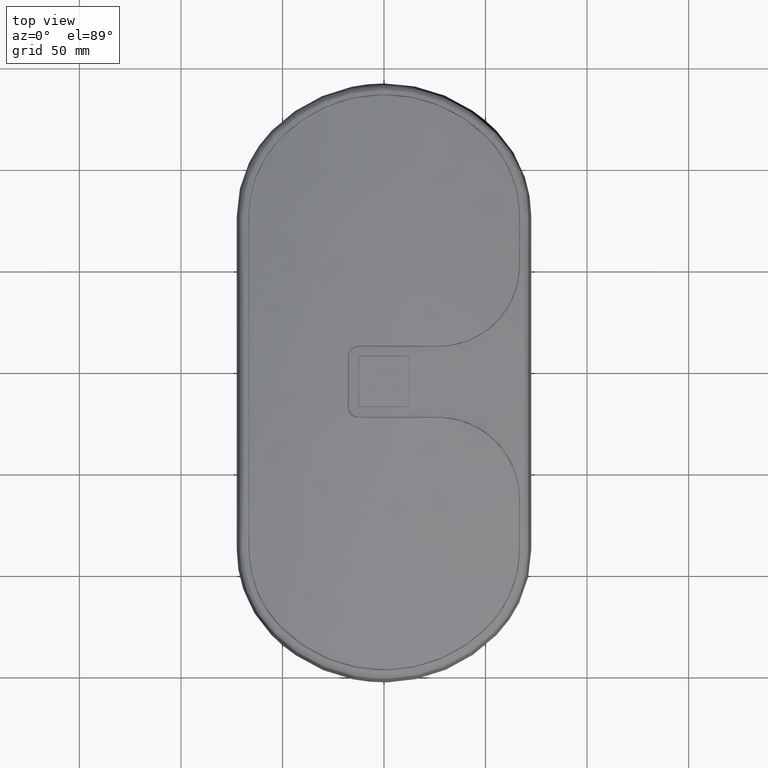
[diagram: clean part render]
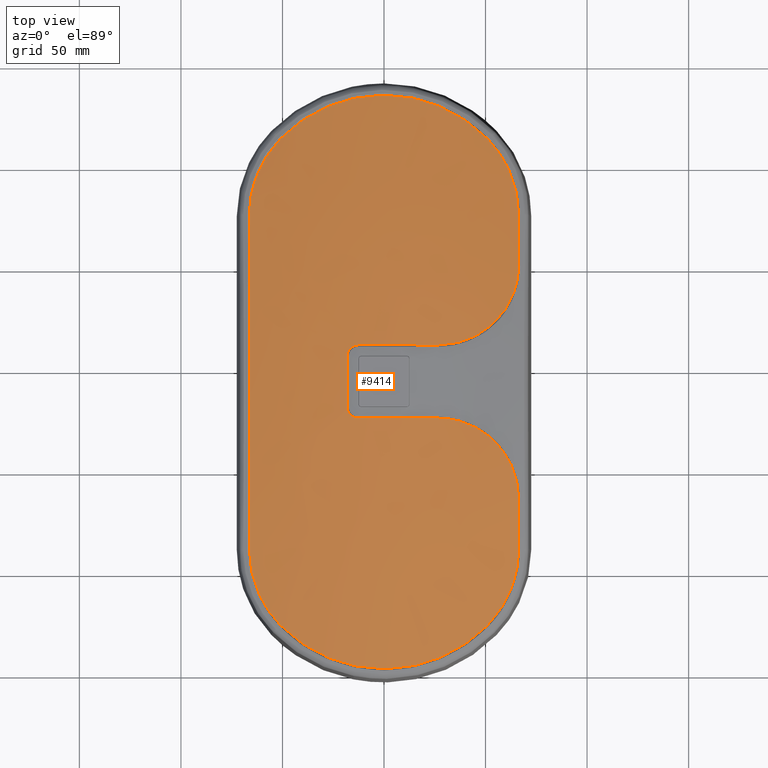
[diagram: same view with one face highlighted and labeled with its STEP entity id]
A machine part, top view. The second image highlights one B-rep face of the part: STEP entity #9414.
In plain terms, the highlighted face is a freeform B-spline surface patch.
Its self-contained STEP definition (entity closure, byte-faithful):
#18 = CARTESIAN_POINT ( 'NONE',  ( -17.46326758929851408, 28.15362004242848570, 219.8598956112555527 ) ) ;
#30 = CARTESIAN_POINT ( 'NONE',  ( 64.15844266693783027, 88.07705453095773862, 209.3021296673372831 ) ) ;
#35 = CARTESIAN_POINT ( 'NONE',  ( 64.97219269329066549, 137.7215438996090882, 203.6671617160232870 ) ) ;
#69 = CARTESIAN_POINT ( 'NONE',  ( 11.57024656942300034, 43.42808254921262545, 220.5169199636127075 ) ) ;
#84 = CARTESIAN_POINT ( 'NONE',  ( 29.81181968206535871, 178.1927645458040388, 205.0468116223597121 ) ) ;
#99 = CARTESIAN_POINT ( 'NONE',  ( -16.04378983216178156, 26.53738068748821277, 219.9332974502598006 ) ) ;
#108 = CARTESIAN_POINT ( 'NONE',  ( 61.25390180664494721, 5.198663363938697657, 210.6163553388888658 ) ) ;
#118 = CARTESIAN_POINT ( 'NONE',  ( -18.71798582327893001, -95.32900178140060632, 205.5608349653536493 ) ) ;
#119 = CARTESIAN_POINT ( 'NONE',  ( -63.56209561027105792, -55.87008167289961591, 203.3766647396037115 ) ) ;
#169 = CARTESIAN_POINT ( 'NONE',  ( 36.09792871868237540, 174.8775816281145410, 204.6594053288953887 ) ) ;
#174 = CARTESIAN_POINT ( 'NONE',  ( -66.29735208111164013, 77.81083968938067130, 209.2790757671028246 ) ) ;
#198 = CARTESIAN_POINT ( 'NONE',  ( -15.24627076480030219, -96.17949683370339642, 205.6754381838825907 ) ) ;
#264 = CARTESIAN_POINT ( 'NONE',  ( 66.29926321442961523, -14.12049172457155422, 207.5776157116058585 ) ) ;
#274 = CARTESIAN_POINT ( 'NONE',  ( -47.61024757625367698, -79.65880390832415969, 203.8322812746360171 ) ) ;
#290 = CARTESIAN_POINT ( 'NONE',  ( 63.55986690828642338, -55.89120322041640065, 203.3720218001600699 ) ) ;
#351 = EDGE_CURVE ( 'Defeatured_0_0+Defeatured_0_21+Defeatured_0_23+Defeatured_0_19', #14463, #4191, #13700, .T. ) ;
#405 = CARTESIAN_POINT ( 'NONE',  ( -18.01371397899924887, 57.36735070667229763, 219.8428921939822374 ) ) ;
#418 = CARTESIAN_POINT ( 'NONE',  ( 66.29914169129392576, -11.47378258080629543, 207.8150648695524865 ) ) ;
#451 = CARTESIAN_POINT ( 'NONE',  ( 55.62091833696599963, -71.15900204771212145, 203.2742824260909913 ) ) ;
#522 = CARTESIAN_POINT ( 'NONE',  ( 66.30078041461482030, -40.62257739408176604, 204.6503384869841966 ) ) ;
#634 = CARTESIAN_POINT ( 'NONE',  ( 0.01028707379601065224, -99.88193803666831627, 205.4584173015715294 ) ) ;
#640 = CARTESIAN_POINT ( 'NONE',  ( -17.45294168043287897, 58.69050579141951118, 219.8608939670576206 ) ) ;
#708 = CARTESIAN_POINT ( 'NONE',  ( 22.68857985263749910, -53.18935853610327058, 214.3774798297451412 ) ) ;
#784 = CARTESIAN_POINT ( 'NONE',  ( 17.38118190714810396, -4.884991627148490778, 220.0378661604646595 ) ) ;
#828 = B_SPLINE_CURVE_WITH_KNOTS ( 'NONE', 3,
 ( #14904, #13577, #451, #6402, #2757, #13888, #2836, #8719, #290, #2687, #7520, #4086, #11261, #12391, #11184, #5136, #522, #7592 ),
 .UNSPECIFIED., .F., .F.,
 ( 4, 2, 2, 2, 2, 2, 2, 2, 4 ),
 ( 0.0000000000000000000, 0.01036578884546289839, 0.01554868326819436493, 0.02073157769092585229, 0.02591447211365734485, 0.02850591932502309633, 0.03109736653638884782, 0.03628026095912036814, 0.04146315538185187805 ),
 .UNSPECIFIED. ) ;
#872 = CARTESIAN_POINT ( 'NONE',  ( -53.74396954402440230, -99.88301236950015038, 198.3367334028273206 ) ) ;
#886 = ORIENTED_EDGE ( 'NONE', *, *, #5569, .T. ) ;
#915 = CARTESIAN_POINT ( 'NONE',  ( 56.40410635426117381, 74.79093016765249047, 212.3915480500613455 ) ) ;
#999 = CARTESIAN_POINT ( 'NONE',  ( -58.01749593589836707, -67.51208502426862879, 203.1975516321419093 ) ) ;
#1012 = EDGE_LOOP ( 'NONE', ( #7395, #1504, #2253, #4524, #13429, #5337, #3189, #6833, #5205, #10497, #11162, #886, #1564, #8969, #9063, #4768 ) ) ;
#1027 = CARTESIAN_POINT ( 'NONE',  ( 43.15938739768790100, 186.7399436771935655, 200.7998753498113444 ) ) ;
#1048 = CARTESIAN_POINT ( 'NONE',  ( -9.493695185145588411, 184.0508075909120578, 205.8135998372313225 ) ) ;
#1102 = CARTESIAN_POINT ( 'NONE',  ( 0.03359708015213029586, 91.74069324380360513, 220.7527973172209954 ) ) ;
#1144 = CARTESIAN_POINT ( 'NONE',  ( 51.02634899205816055, 163.1931504267746504, 203.5803227976296341 ) ) ;
#1181 = CARTESIAN_POINT ( 'NONE',  ( -18.19226166652730114, 39.25130172041993148, 220.0110326760408839 ) ) ;
#1184 = CARTESIAN_POINT ( 'NONE',  ( 67.39078960470271795, 140.0445167232655592, 204.2961116910592239 ) ) ;
#1196 = CARTESIAN_POINT ( 'NONE',  ( 66.30066395131453305, 125.7515932687080777, 204.8727031279244386 ) ) ;
#1201 = CARTESIAN_POINT ( 'NONE',  ( -8.304558164214386196, 184.2009249590114450, 205.8341065353321255 ) ) ;
#1225 = CARTESIAN_POINT ( 'NONE',  ( 11.84928130558356685, -96.83748220726211287, 205.7663841930887259 ) ) ;
#1226 = CARTESIAN_POINT ( 'NONE',  ( -62.99048689760354591, -57.49298103747052124, 203.3085318682473428 ) ) ;
#1227 = VERTEX_POINT ( 'NONE', #1196 ) ;
#1258 = CARTESIAN_POINT ( 'NONE',  ( 52.29569424687390011, 43.42808254910060839, 214.2330272378520704 ) ) ;
#1273 = CARTESIAN_POINT ( 'NONE',  ( 19.85993811556663502, 181.8648207867931887, 205.5188511044601967 ) ) ;
#1278 = CARTESIAN_POINT ( 'NONE',  ( -66.29711513835847825, 15.90408086289308720, 209.7201665693417283 ) ) ;
#1287 = CARTESIAN_POINT ( 'NONE',  ( 20.17641465411423596, 25.40854521753735895, 219.6470433995852432 ) ) ;
#1288 = CARTESIAN_POINT ( 'NONE',  ( -18.05124874874577756, 29.66265009182627921, 219.8432093015477164 ) ) ;
#1296 = CARTESIAN_POINT ( 'NONE',  ( 64.73799668817852648, -3.111942774511600618, 208.9809969425745351 ) ) ;
#1304 = CARTESIAN_POINT ( 'NONE',  ( 25.50633283727766099, -93.14825944994720430, 205.2736910453387225 ) ) ;
#1335 = CARTESIAN_POINT ( 'NONE',  ( -11.31531759796239989, 140.0441622567905995, 215.5382262754915246 ) ) ;
#1351 = B_SPLINE_CURVE_WITH_KNOTS ( 'NONE', 3,
 ( #4775, #10987, #3813, #12114, #13296, #4928, #11949, #169, #4845, #6199, #84, #7314, #6123, #1273, #9809, #9649, #10747, #14638, #9564, #8589, #14711, #14487, #9725, #1201, #1048, #3666, #13453, #3586, #2557, #2330, #2249, #8517, #13382, #2407, #7236, #5882, #2482, #15597, #6045, #7387, #14415, #12186 ),
 .UNSPECIFIED., .F., .F.,
 ( 4, 2, 2, 2, 2, 2, 2, 2, 2, 2, 2, 2, 2, 2, 2, 2, 2, 2, 2, 2, 4 ),
 ( 0.0000000000000000000, 0.007120365257570303655, 0.01424073051514060731, 0.01780091314392573745, 0.02136109577271086413, 0.02848146103028112788, 0.03560182628785137776, 0.03916200891663649403, 0.04272219154542160335, 0.04984255680299183588, 0.05696292206056204760, 0.06408328731813227319, 0.06764346994691738946, 0.07120365257570250572, 0.07832401783327273825, 0.08544438309084295691, 0.08900456571962808705, 0.09256474834841320332, 0.09968511360598340809, 0.1068054788635536406, 0.1139258441211238732 ),
 .UNSPECIFIED. ) ;
#1384 = CARTESIAN_POINT ( 'NONE',  ( 2.382151774481425566, -97.82300794339272443, 205.8995156396993025 ) ) ;
#1451 = CARTESIAN_POINT ( 'NONE',  ( -17.84066600234974587, 28.96997787854018824, 219.8464591599083633 ) ) ;
#1471 = CARTESIAN_POINT ( 'NONE',  ( 13.01789390031080984, -96.63013433922917272, 205.7381304160931279 ) ) ;
#1504 = ORIENTED_EDGE ( 'NONE', *, *, #5778, .T. ) ;
#1537 = CARTESIAN_POINT ( 'NONE',  ( 60.93258288589630922, 5.760678579217171524, 210.7463889888285280 ) ) ;
#1564 = ORIENTED_EDGE ( 'NONE', *, *, #8511, .T. ) ;
#1597 = CARTESIAN_POINT ( 'NONE',  ( -12.67940506602159800, 61.43523734159919769, 220.1316711843255689 ) ) ;
#1601 = CARTESIAN_POINT ( 'NONE',  ( 0.4613672942006233901, 61.43524956787831570, 220.6146703678169558 ) ) ;
#1607 = EDGE_CURVE ( 'Defeatured_0_0+Defeatured_0_18+Defeatured_0_19+Defeatured_0_20', #12733, #2972, #5792, .T. ) ;
#1649 = CARTESIAN_POINT ( 'NONE',  ( -66.29974077319435821, 125.7516070377188981, 204.8766309863386255 ) ) ;
#1665 = B_SPLINE_CURVE_WITH_KNOTS ( 'NONE', 3,
 ( #7325, #1287, #4786, #9659, #3596, #8449 ),
 .UNSPECIFIED., .F., .F.,
 ( 4, 2, 4 ),
 ( 0.0000000000000000000, 0.01971905991781117140, 0.03943811983562234280 ),
 .UNSPECIFIED. ) ;
#1676 = CARTESIAN_POINT ( 'NONE',  ( -14.10173970799716692, 61.25192534413017142, 220.0469054583722652 ) ) ;
#1678 = CARTESIAN_POINT ( 'NONE',  ( -62.99315171265381963, 144.3477838100291422, 203.3078951974263759 ) ) ;
#1825 = CARTESIAN_POINT ( 'NONE',  ( 21.71555945271209964, -99.88395323878215493, 204.3601890406116297 ) ) ;
#1911 = CARTESIAN_POINT ( 'NONE',  ( 56.53236971252650278, -53.18888139112436875, 207.7847224006706313 ) ) ;
#1987 = CARTESIAN_POINT ( 'NONE',  ( 39.78854340633149889, -53.18938162964447969, 211.7924356320145307 ) ) ;
#2008 = CARTESIAN_POINT ( 'NONE',  ( 50.77887547040264593, 17.26885805535854956, 214.0911078716854377 ) ) ;
#2030 = VERTEX_POINT ( 'NONE', #3380 ) ;
#2061 = CARTESIAN_POINT ( 'NONE',  ( -18.19227632628737013, 30.91259747813296244, 219.8556069557320711 ) ) ;
#2062 = B_SPLINE_CURVE_WITH_KNOTS ( 'NONE', 3,
 ( #2061, #1181, #2308, #6901 ),
 .UNSPECIFIED., .F., .F.,
 ( 4, 4 ),
 ( 0.0000000000000000000, 0.02501937637798910125 ),
 .UNSPECIFIED. ) ;
#2067 = CARTESIAN_POINT ( 'NONE',  ( 64.05410634329560082, -99.88252881352543966, 194.7899857272403210 ) ) ;
#2109 = CARTESIAN_POINT ( 'NONE',  ( 50.84201055089587129, 69.52393223012835222, 214.0909091208546329 ) ) ;
#2120 = EDGE_CURVE ( 'Defeatured_0_0+Defeatured_0_27+Defeatured_0_29+Defeatured_0_25', #3900, #6395, #3882, .T. ) ;
#2121 = EDGE_CURVE ( 'Defeatured_0_0+Defeatured_0_30+Defeatured_0_28+Defeatured_0_32', #1227, #5184, #10154, .T. ) ;
#2147 = CARTESIAN_POINT ( 'NONE',  ( -21.75631835865880248, -99.88374822816547294, 204.5857826311448378 ) ) ;
#2230 = CARTESIAN_POINT ( 'NONE',  ( -23.29189784629880222, 91.74133551779156903, 219.8041940461089894 ) ) ;
#2249 = CARTESIAN_POINT ( 'NONE',  ( -25.50556351373296593, 180.0042889642834893, 205.2739518480168215 ) ) ;
#2253 = ORIENTED_EDGE ( 'NONE', *, *, #9891, .T. ) ;
#2308 = CARTESIAN_POINT ( 'NONE',  ( -18.19226165914599846, 47.59244955784135556, 220.0111103507750556 ) ) ;
#2313 = CARTESIAN_POINT ( 'NONE',  ( -56.63235040430429734, 140.0448678620955718, 207.9963296777527262 ) ) ;
#2330 = CARTESIAN_POINT ( 'NONE',  ( -23.28732232409874925, 180.8093427737022978, 205.3786098916351648 ) ) ;
#2360 = CARTESIAN_POINT ( 'NONE',  ( -64.55214015797484706, -52.55963463159628191, 203.5571476808212310 ) ) ;
#2390 = CARTESIAN_POINT ( 'NONE',  ( 62.01150208639170103, 140.0447984136645800, 206.1450203078439358 ) ) ;
#2407 = CARTESIAN_POINT ( 'NONE',  ( -32.01215348084034673, 177.1009665488766416, 204.9168290982991891 ) ) ;
#2437 = CARTESIAN_POINT ( 'NONE',  ( -2.338942456069497577, -97.82442186551503482, 205.8992392839418528 ) ) ;
#2468 = CARTESIAN_POINT ( 'NONE',  ( 34.10279568204919798, 140.0456475805435730, 212.7337774859329897 ) ) ;
#2478 = CARTESIAN_POINT ( 'NONE',  ( 66.29926264771768274, 100.9643171417655765, 207.5787253775239662 ) ) ;
#2482 = CARTESIAN_POINT ( 'NONE',  ( -38.21845789802463855, 173.6158244242123203, 204.5181637053892416 ) ) ;
#2500 = CARTESIAN_POINT ( 'NONE',  ( 66.30066395985839733, -38.89555003099011543, 204.8726835114582627 ) ) ;
#2512 = CARTESIAN_POINT ( 'NONE',  ( 66.30089700980123268, 129.2078635337406638, 204.4277286781224916 ) ) ;
#2541 = CARTESIAN_POINT ( 'NONE',  ( 64.05410844906940326, 186.7386949334735959, 194.7899917265364422 ) ) ;
#2557 = CARTESIAN_POINT ( 'NONE',  ( -18.78316051136568987, 182.1972186286740509, 205.5620268359589318 ) ) ;
#2582 = CARTESIAN_POINT ( 'NONE',  ( 64.93016733032982302, 90.57796210613533106, 208.8757760591207102 ) ) ;
#2587 = CARTESIAN_POINT ( 'NONE',  ( 55.63365327438910413, 158.0081563915637446, 203.2720322330799547 ) ) ;
#2646 = CARTESIAN_POINT ( 'NONE',  ( -16.82980678760007720, 27.27216704604629527, 219.8904723100143030 ) ) ;
#2657 = B_SPLINE_CURVE_WITH_KNOTS ( 'NONE', 3,
 ( #14420, #3518, #14718, #174, #12191, #13458, #5011, #9884, #1278, #11142, #6282, #10991 ),
 .UNSPECIFIED., .F., .F.,
 ( 4, 2, 2, 2, 2, 4 ),
 ( 0.0000000000000000000, 0.04126498278244706414, 0.06189747417367061355, 0.08252996556489416990, 0.1237949483473412965, 0.1650599311297884508 ),
 .UNSPECIFIED. ) ;
#2667 = CARTESIAN_POINT ( 'NONE',  ( -42.08260772551673767, -84.12862875278430863, 204.2441654614357560 ) ) ;
#2687 = CARTESIAN_POINT ( 'NONE',  ( 64.30160836856929052, -53.42064937715341699, 203.5055514528772562 ) ) ;
#2757 = CARTESIAN_POINT ( 'NONE',  ( 59.35595044688984245, -65.30772125663861516, 203.1726102138742931 ) ) ;
#2803 = CARTESIAN_POINT ( 'NONE',  ( -12.67940506602159800, 61.43523734159919769, 220.1316711843255689 ) ) ;
#2836 = CARTESIAN_POINT ( 'NONE',  ( 61.68939390781986276, -60.68670697455358010, 203.2123335869692085 ) ) ;
#2873 = CARTESIAN_POINT ( 'NONE',  ( -17.05592685122953256, 59.29757466255819054, 219.8792183337918686 ) ) ;
#2887 = CARTESIAN_POINT ( 'NONE',  ( 65.23655238777008947, -5.001752187122145976, 208.6799428545879493 ) ) ;
#2957 = CARTESIAN_POINT ( 'NONE',  ( -16.82742318441962581, 59.57429897282872844, 219.8908952291982359 ) ) ;
#2972 = VERTEX_POINT ( 'NONE', #14270 ) ;
#3024 = CARTESIAN_POINT ( 'NONE',  ( -22.76822695939840102, -53.18921009600017413, 214.6161221077747143 ) ) ;
#3028 = CARTESIAN_POINT ( 'NONE',  ( -17.90753775949587379, 57.71364933359721761, 219.8446167025894340 ) ) ;
#3085 = EDGE_CURVE ( 'Defeatured_0_0+Defeatured_0_28+Defeatured_0_26+Defeatured_0_30', #13627, #1227, #15600, .T. ) ;
#3100 = CARTESIAN_POINT ( 'NONE',  ( 48.42665332016390067, -99.88353088192950224, 199.4605205790649052 ) ) ;
#3105 = CARTESIAN_POINT ( 'NONE',  ( -15.11933513707986165, 60.87992927636061324, 219.9868386407988226 ) ) ;
#3144 = CARTESIAN_POINT ( 'NONE',  ( 59.18645785549189497, 78.35118990750976309, 211.4175615377736790 ) ) ;
#3183 = CARTESIAN_POINT ( 'NONE',  ( 29.08924870668599993, -4.885357693189887662, 218.8363007274384699 ) ) ;
#3189 = ORIENTED_EDGE ( 'NONE', *, *, #5194, .T. ) ;
#3222 = CARTESIAN_POINT ( 'NONE',  ( 47.60783277016697213, 67.38681310473337760, 214.9316604097097070 ) ) ;
#3257 = CARTESIAN_POINT ( 'NONE',  ( 34.94281048177990101, -4.885307175977487759, 217.8682084635415492 ) ) ;
#3334 = CARTESIAN_POINT ( 'NONE',  ( -46.56266057986120188, -4.885491178105105803, 215.9365516723070471 ) ) ;
#3380 = CARTESIAN_POINT ( 'NONE',  ( -18.19227630406737006, 55.93115760660422353, 219.8558387167926753 ) ) ;
#3408 = CARTESIAN_POINT ( 'NONE',  ( 0.03359707849392819939, 43.42808254927859934, 220.7527962291952406 ) ) ;
#3494 = CARTESIAN_POINT ( 'NONE',  ( 27.11721998089850416, 186.7404512983655991, 203.6968507251510232 ) ) ;
#3518 = CARTESIAN_POINT ( 'NONE',  ( -66.29877680500409554, 112.1003766303452807, 206.6347615007110505 ) ) ;
#3542 = CARTESIAN_POINT ( 'NONE',  ( -66.29998484598307584, -42.35181488109893166, 204.4314828461228899 ) ) ;
#3553 = CARTESIAN_POINT ( 'NONE',  ( -51.02529239238161551, 163.1932895469398090, 203.5788030923400527 ) ) ;
#3568 = CARTESIAN_POINT ( 'NONE',  ( -34.09107335019100304, 140.0456946454085880, 212.7356459425648154 ) ) ;
#3586 = CARTESIAN_POINT ( 'NONE',  ( -16.49723847823954159, 182.7800342088395098, 205.6407993928008580 ) ) ;
#3596 = CARTESIAN_POINT ( 'NONE',  ( -6.111114183927846888, 25.40852281759333309, 220.5237109245071281 ) ) ;
#3611 = CARTESIAN_POINT ( 'NONE',  ( -39.13612821745842751, -86.13323463949653558, 204.4529959961602117 ) ) ;
#3646 = CARTESIAN_POINT ( 'NONE',  ( 17.38118206115920117, 91.74115672541357469, 220.0378683283864234 ) ) ;
#3666 = CARTESIAN_POINT ( 'NONE',  ( -11.84844849564423974, 183.6935247823205657, 205.7648887781856217 ) ) ;
#3682 = EDGE_CURVE ( 'Defeatured_0_0+Defeatured_0_29+Defeatured_0_31+Defeatured_0_27', #14742, #3900, #6880, .T. ) ;
#3698 = CARTESIAN_POINT ( 'NONE',  ( 42.11339049913924271, -84.10595667799074704, 204.2428522835199942 ) ) ;
#3729 = CARTESIAN_POINT ( 'NONE',  ( 45.42108519305980252, 140.0453935084415775, 210.6091622646914345 ) ) ;
#3770 = CARTESIAN_POINT ( 'NONE',  ( -38.13563782844619254, -86.77837093700532023, 204.5223891477989469 ) ) ;
#3813 = CARTESIAN_POINT ( 'NONE',  ( 47.61113003415609768, 166.5148349572238544, 203.8340294132306667 ) ) ;
#3823 = CARTESIAN_POINT ( 'NONE',  ( -60.96879536218119000, 149.0898312910169068, 203.1878540844884071 ) ) ;
#3844 = CARTESIAN_POINT ( 'NONE',  ( 32.01291652336572469, -90.24494948529734017, 204.9161692855201977 ) ) ;
#3882 = B_SPLINE_CURVE_WITH_KNOTS ( 'NONE', 3,
 ( #14280, #15633, #274, #7268, #2667, #3611, #3770, #13329, #13556, #8700, #12296, #10936, #7500, #8622, #118, #11239, #198, #9680, #13411, #8466, #2437, #1384, #12145, #11017, #12371, #1225, #1471, #14516, #6309, #13631, #1304, #11095, #6232, #3844, #11166, #5118, #9836, #3698, #14592, #14667, #6147, #12215 ),
 .UNSPECIFIED., .F., .F.,
 ( 4, 2, 2, 2, 2, 2, 2, 2, 2, 2, 2, 2, 2, 2, 2, 2, 2, 2, 2, 2, 4 ),
 ( 0.0000000000000000000, 0.007120374966992482242, 0.01424074993398496448, 0.01780093741748120170, 0.02136112490097744065, 0.02848149986796988040, 0.03560187483496230626, 0.03916206231845852787, 0.04272224980195474253, 0.04984262476894717186, 0.05696299973593960814, 0.06408337470293204441, 0.06764356218642825214, 0.07120374966992445986, 0.07832412463691690307, 0.08544449960390933241, 0.08900468708740555401, 0.09256487457090178950, 0.09968524953789424659, 0.1068056245048867037, 0.1139259994718791608 ),
 .UNSPECIFIED. ) ;
#3900 = VERTEX_POINT ( 'NONE', #11241 ) ;
#3901 = CARTESIAN_POINT ( 'NONE',  ( -64.94971613581843428, 137.7456290691072525, 203.6719682783930523 ) ) ;
#3911 = CARTESIAN_POINT ( 'NONE',  ( 64.91417350753449966, -3.737463351555507352, 208.8785185707983487 ) ) ;
#3922 = CARTESIAN_POINT ( 'NONE',  ( 53.45861105987334128, 160.7041250765115592, 203.4026057254817772 ) ) ;
#3976 = CARTESIAN_POINT ( 'NONE',  ( -66.29998483730564374, 129.2079196020438587, 204.4314953901155434 ) ) ;
#3984 = CARTESIAN_POINT ( 'NONE',  ( 53.74749036918800726, 14.78048899386748261, 213.2328072788656641 ) ) ;
#4048 = CARTESIAN_POINT ( 'NONE',  ( -65.13821632901820635, 136.8973822365748561, 203.7338460112397343 ) ) ;
#4086 = CARTESIAN_POINT ( 'NONE',  ( 64.94518449264096205, -50.91319415278906746, 203.6672581444649666 ) ) ;
#4128 = CARTESIAN_POINT ( 'NONE',  ( -51.02529239238161551, 163.1932895469398090, 203.5788030923400527 ) ) ;
#4132 = EDGE_CURVE ( 'Defeatured_0_0+Defeatured_0_25+Defeatured_0_27+Defeatured_0_23', #6395, #13325, #828, .T. ) ;
#4191 = VERTEX_POINT ( 'NONE', #7763 ) ;
#4226 = CARTESIAN_POINT ( 'NONE',  ( 36.98065439408006938, 24.07592783924715718, 217.2429237875295200 ) ) ;
#4282 = FACE_OUTER_BOUND ( 'NONE', #1012, .T. ) ;
#4324 = CARTESIAN_POINT ( 'NONE',  ( 45.93978603486944934, 66.40745609477986022, 215.3435266690248682 ) ) ;
#4362 = CARTESIAN_POINT ( 'NONE',  ( 53.69392066999350277, -99.88328420637820670, 198.1211719989429128 ) ) ;
#4376 = CARTESIAN_POINT ( 'NONE',  ( 26.70453294994889859, 61.43521697538917437, 218.8245817671040925 ) ) ;
#4408 = CARTESIAN_POINT ( 'NONE',  ( 37.65344156218188942, 62.97125412788076915, 217.1148132952154128 ) ) ;
#4446 = CARTESIAN_POINT ( 'NONE',  ( -34.92727910382299683, -4.885330798872086433, 217.8703717765878594 ) ) ;
#4486 = CARTESIAN_POINT ( 'NONE',  ( 35.76867317120458978, 62.47958170722667148, 217.4580853480754001 ) ) ;
#4518 = CARTESIAN_POINT ( 'NONE',  ( 34.10279498382720931, -53.18948213367757205, 212.7337732184417121 ) ) ;
#4524 = ORIENTED_EDGE ( 'NONE', *, *, #3682, .T. ) ;
#4597 = CARTESIAN_POINT ( 'NONE',  ( 53.69392246133350710, 186.7394503261835723, 198.1211780975919510 ) ) ;
#4682 = CARTESIAN_POINT ( 'NONE',  ( 23.19211750394120131, 91.74141013213157692, 219.5588156064519296 ) ) ;
#4760 = CARTESIAN_POINT ( 'NONE',  ( 34.94281065708209866, 43.42808254903260234, 217.8682095349646488 ) ) ;
#4768 = ORIENTED_EDGE ( 'NONE', *, *, #2121, .T. ) ;
#4775 = CARTESIAN_POINT ( 'NONE',  ( 51.02634899205816055, 163.1931504267746504, 203.5803227976296341 ) ) ;
#4786 = CARTESIAN_POINT ( 'NONE',  ( 13.62450402548333450, 25.40852953607453557, 220.1762716808983100 ) ) ;
#4803 = CARTESIAN_POINT ( 'NONE',  ( 59.77408837181450707, 151.3795885162916761, 203.1742662013113545 ) ) ;
#4804 = CARTESIAN_POINT ( 'NONE',  ( -59.35405075630937688, -65.27851974236709509, 203.1759794581239191 ) ) ;
#4832 = CARTESIAN_POINT ( 'NONE',  ( 69.11652894141400338, 91.74090370202955569, 209.2131053857582970 ) ) ;
#4845 = CARTESIAN_POINT ( 'NONE',  ( 35.06642268172545585, 175.4716343258536426, 204.7266586762387703 ) ) ;
#4867 = CARTESIAN_POINT ( 'NONE',  ( 66.23353299100135416, 98.32937204676566978, 207.8328267741775619 ) ) ;
#4871 = CARTESIAN_POINT ( 'NONE',  ( 64.55306036118274449, 139.4157518060908671, 203.5543331809941208 ) ) ;
#4907 = CARTESIAN_POINT ( 'NONE',  ( -45.41391930579541025, 140.0460137478695799, 210.8551654652690104 ) ) ;
#4928 = CARTESIAN_POINT ( 'NONE',  ( 39.13693212741246441, 172.9892688418406408, 204.4533250878448030 ) ) ;
#4949 = CARTESIAN_POINT ( 'NONE',  ( 52.79357323510036082, 15.64219712055507649, 213.5183781561593719 ) ) ;
#4960 = CARTESIAN_POINT ( 'NONE',  ( 59.35496103540694435, 152.1346771104485640, 203.1754047178613405 ) ) ;
#5011 = CARTESIAN_POINT ( 'NONE',  ( -66.29687989581633190, 50.31043835716516099, 210.1649512901265098 ) ) ;
#5097 = CARTESIAN_POINT ( 'NONE',  ( -18.00751629676208054, 29.48808548255641071, 219.8433247332400811 ) ) ;
#5106 = CARTESIAN_POINT ( 'NONE',  ( 64.16543673870761211, -1.254783942033983468, 209.2975111721993073 ) ) ;
#5118 = CARTESIAN_POINT ( 'NONE',  ( 36.20413836816941711, -87.99322412401240001, 204.6548784184400631 ) ) ;
#5136 = CARTESIAN_POINT ( 'NONE',  ( 66.21922449306305225, -42.35117522830748271, 204.4482622135224688 ) ) ;
#5184 = VERTEX_POINT ( 'NONE', #1144 ) ;
#5194 = EDGE_CURVE ( 'Defeatured_0_0+Defeatured_0_23+Defeatured_0_25+Defeatured_0_21', #13325, #14463, #6340, .T. ) ;
#5205 = ORIENTED_EDGE ( 'NONE', *, *, #12694, .T. ) ;
#5322 = CARTESIAN_POINT ( 'NONE',  ( -16.31839923293859229, 60.08130102979377796, 219.9182535182418121 ) ) ;
#5324 = CARTESIAN_POINT ( 'NONE',  ( -63.56527364920838608, 142.7284403744670556, 203.3752751730908983 ) ) ;
#5337 = ORIENTED_EDGE ( 'NONE', *, *, #4132, .T. ) ;
#5395 = CARTESIAN_POINT ( 'NONE',  ( -17.70059109451875656, 58.21044261518497365, 219.8511248117671641 ) ) ;
#5479 = CARTESIAN_POINT ( 'NONE',  ( -10.86757330514059738, -99.88202709793756640, 205.4578886740023052 ) ) ;
#5519 = CARTESIAN_POINT ( 'NONE',  ( 29.33573908680262221, 61.43521519842543910, 218.4929486425400569 ) ) ;
#5551 = CARTESIAN_POINT ( 'NONE',  ( 58.00049012243090374, -4.885005070238493730, 212.7831183246481714 ) ) ;
#5569 = EDGE_CURVE ( 'Defeatured_0_0+Defeatured_0_22+Defeatured_0_20+Defeatured_0_24', #2030, #11877, #8430, .T. ) ;
#5628 = CARTESIAN_POINT ( 'NONE',  ( 5.823964962920480382, -4.884512059462887024, 220.7531055784031935 ) ) ;
#5706 = CARTESIAN_POINT ( 'NONE',  ( 62.01150075217609725, -53.18863296654617301, 206.1450161876521179 ) ) ;
#5747 = CARTESIAN_POINT ( 'NONE',  ( 57.63814317427263489, 76.28192091878794656, 211.9705917849346690 ) ) ;
#5778 = EDGE_CURVE ( 'Defeatured_0_0+Defeatured_0_33+Defeatured_0_32+Defeatured_0_31', #14810, #8786, #15648, .T. ) ;
#5781 = CARTESIAN_POINT ( 'NONE',  ( 0.03359707683572600578, -4.884528145246092024, 220.7527951411694858 ) ) ;
#5792 = B_SPLINE_CURVE_WITH_KNOTS ( 'NONE', 3,
 ( #11001, #15691, #9894, #14725, #7401, #7252, #8680, #99, #12198, #2646, #12353, #18, #8762, #1451, #11149, #5097, #1288, #12045, #5982, #9660 ),
 .UNSPECIFIED., .F., .F.,
 ( 4, 2, 2, 2, 2, 2, 2, 2, 2, 4 ),
 ( 0.0000000000000000000, 0.001085028559031800052, 0.002170057118063600105, 0.003255085677095400157, 0.004340114236127203678, 0.005425142795159007200, 0.006510171354190811589, 0.007052685633706714217, 0.007595199913222615111, 0.008680228472254419500 ),
 .UNSPECIFIED. ) ;
#5834 = CARTESIAN_POINT ( 'NONE',  ( -51.02546971828904532, -76.33710338916358751, 203.5787549041672833 ) ) ;
#5862 = CARTESIAN_POINT ( 'NONE',  ( 22.68858027109790143, 140.0455239830075982, 214.3774841362288157 ) ) ;
#5882 = CARTESIAN_POINT ( 'NONE',  ( -36.20337076613655825, 174.8492473978989210, 204.6552071568023905 ) ) ;
#5913 = CARTESIAN_POINT ( 'NONE',  ( 51.02616150135258266, -76.33725724223934606, 203.5803160745765297 ) ) ;
#5917 = CARTESIAN_POINT ( 'NONE',  ( -59.77317671892841844, -64.52342903392128903, 203.1750062702710977 ) ) ;
#5945 = CARTESIAN_POINT ( 'NONE',  ( 50.97672806291289760, 140.0452201733045570, 209.1969444098953090 ) ) ;
#5982 = CARTESIAN_POINT ( 'NONE',  ( -18.19227696614331435, 30.54863726313235262, 219.8488230745754777 ) ) ;
#5986 = CARTESIAN_POINT ( 'NONE',  ( 66.29964315327364943, -22.39535730723681795, 206.8352372491465871 ) ) ;
#6028 = CARTESIAN_POINT ( 'NONE',  ( 39.78854424404219969, 140.0455470765406005, 211.7924398772659345 ) ) ;
#6045 = CARTESIAN_POINT ( 'NONE',  ( -43.99162000950422424, 169.5416553422802224, 204.1027913128115756 ) ) ;
#6072 = CARTESIAN_POINT ( 'NONE',  ( 66.30066395131453305, 125.7515932687080777, 204.8727031279244386 ) ) ;
#6108 = CARTESIAN_POINT ( 'NONE',  ( -69.12268152337169624, 43.42808254926161737, 209.2171832494365447 ) ) ;
#6123 = CARTESIAN_POINT ( 'NONE',  ( 23.25057545583380403, 180.8225362626827462, 205.3804975035562279 ) ) ;
#6147 = CARTESIAN_POINT ( 'NONE',  ( 49.35609353878158601, -78.04675773796911642, 203.7022553403689642 ) ) ;
#6148 = CARTESIAN_POINT ( 'NONE',  ( -64.97127369955997267, -50.86544195881128871, 203.6701725144330339 ) ) ;
#6180 = CARTESIAN_POINT ( 'NONE',  ( -58.12585008499090122, 43.42808254915658495, 212.9928311084929646 ) ) ;
#6199 = CARTESIAN_POINT ( 'NONE',  ( 31.94016770873407651, 177.1703170892595267, 204.9229926516673856 ) ) ;
#6232 = CARTESIAN_POINT ( 'NONE',  ( 29.86452756868908409, -91.28024795557604421, 205.0408238085852304 ) ) ;
#6260 = CARTESIAN_POINT ( 'NONE',  ( 5.449217419094340542, 186.7380596260985897, 205.4586879770942289 ) ) ;
#6282 = CARTESIAN_POINT ( 'NONE',  ( -66.29877681159089775, -25.24428073341275081, 206.6347519675435365 ) ) ;
#6309 = CARTESIAN_POINT ( 'NONE',  ( 18.78396734829682302, -95.34117047737123585, 205.5629158938515104 ) ) ;
#6340 = B_SPLINE_CURVE_WITH_KNOTS ( 'NONE', 3,
 ( #2500, #12132, #5986, #7329 ),
 .UNSPECIFIED., .F., .F.,
 ( 4, 4 ),
 ( 0.0000000000000000000, 0.02492316626147710046 ),
 .UNSPECIFIED. ) ;
#6395 = VERTEX_POINT ( 'NONE', #5913 ) ;
#6402 = CARTESIAN_POINT ( 'NONE',  ( 58.47035297167614942, -66.81381347913438162, 203.1849456975557189 ) ) ;
#6420 = VERTEX_POINT ( 'NONE', #8383 ) ;
#6516 = CARTESIAN_POINT ( 'NONE',  ( -13.92742150476665230, 61.29532503773598506, 220.0572625072773008 ) ) ;
#6669 = CARTESIAN_POINT ( 'NONE',  ( 43.15938597033429858, -99.88377755748078357, 200.7998691591870113 ) ) ;
#6713 = CARTESIAN_POINT ( 'NONE',  ( 26.70453294994889859, 61.43521697538917437, 218.8245817671040925 ) ) ;
#6752 = CARTESIAN_POINT ( 'NONE',  ( 69.11652822115959793, -4.884738603604679597, 209.2131033336613655 ) ) ;
#6808 = CARTESIAN_POINT ( 'NONE',  ( -66.29974078567882145, -38.89556380998235596, 204.8766113605581154 ) ) ;
#6826 = CARTESIAN_POINT ( 'NONE',  ( 37.83964483198590045, -99.88399550818149919, 201.9176713768184186 ) ) ;
#6833 = ORIENTED_EDGE ( 'NONE', *, *, #351, .T. ) ;
#6848 = CARTESIAN_POINT ( 'NONE',  ( 35.72594626153497899, 24.39032488195776693, 217.4687483513922359 ) ) ;
#6880 = B_SPLINE_CURVE_WITH_KNOTS ( 'NONE', 3,
 ( #14366, #3542, #9599, #6148, #2360, #119, #1226, #7187, #7271, #5917, #4804, #12065, #999, #9681, #9757, #5834 ),
 .UNSPECIFIED., .F., .F.,
 ( 4, 2, 2, 2, 2, 2, 2, 4 ),
 ( 0.0000000000000000000, 0.01037396533137171541, 0.01556094799705756183, 0.02074793066274341000, 0.02593491332842925989, 0.02852840466127220392, 0.03112189599411514795, 0.04149586132548681305 ),
 .UNSPECIFIED. ) ;
#6901 = CARTESIAN_POINT ( 'NONE',  ( -18.19227630406737006, 55.93115760660422353, 219.8558387167926753 ) ) ;
#6905 = CARTESIAN_POINT ( 'NONE',  ( 63.61673526503580689, 43.42808254916760546, 211.1022254462491787 ) ) ;
#6953 = CARTESIAN_POINT ( 'NONE',  ( 55.53894728970790595, 73.84446370802953652, 212.6739727365988983 ) ) ;
#6994 = CARTESIAN_POINT ( 'NONE',  ( -45.41391835100520069, -53.18984830111337203, 210.8551612418603156 ) ) ;
#7018 = B_SPLINE_CURVE_WITH_KNOTS ( 'NONE', 3,
 ( #6713, #5519, #15207, #15375, #4486, #7034, #4408, #14275, #9355, #13004, #9277, #4324, #14116, #3222, #11897, #2109, #10309, #6953, #915, #5747, #12854, #10609, #3144, #15458, #8226, #7263, #30, #2582, #8462, #7414, #13244, #4867, #7337, #12211 ),
 .UNSPECIFIED., .F., .F.,
 ( 4, 2, 2, 2, 2, 2, 2, 2, 2, 2, 2, 2, 2, 2, 2, 2, 4 ),
 ( 0.0000000000000000000, 0.007907059890116630713, 0.009883824862645796197, 0.01186058983517495995, 0.01581411978023325796, 0.01976764972529155770, 0.02174441469782073186, 0.02372117967034990602, 0.03162823956046663387, 0.03558176950552501688, 0.03755853447805422574, 0.03953529945058342071, 0.04744235934070031857, 0.05139588928575876403, 0.05534941923081721643, 0.05930294917587566189, 0.06325647912093411429 ),
 .UNSPECIFIED. ) ;
#7034 = CARTESIAN_POINT ( 'NONE',  ( 37.02961244525556594, 62.79748782743609326, 217.2308066308556818 ) ) ;
#7065 = CARTESIAN_POINT ( 'NONE',  ( -58.12585039668160647, 91.74108059060357334, 212.9928321511237925 ) ) ;
#7094 = B_SPLINE_SURFACE_WITH_KNOTS ( 'NONE', 3, 3, ( 
 ( #2067, #8021, #4362, #3100, #6669, #6826, #7937, #12727, #1825, #12964, #12885, #11526, #634, #5479, #2147, #15248, #10339, #872, #7856 ),
 ( #9149, #5706, #1911, #9071, #12811, #1987, #4518, #9229, #708, #15166, #13914, #9386, #13040, #13994, #3024, #14227, #6994, #11853, #15330 ),
 ( #6752, #11610, #5551, #9318, #10411, #14070, #3257, #3183, #11686, #784, #15416, #5628, #5781, #10642, #10490, #4446, #3334, #14155, #8179 ),
 ( #8098, #6905, #11767, #1258, #8266, #10728, #4760, #10891, #15735, #7298, #69, #12173, #3408, #9630, #13364, #15575, #14546, #6180, #6108 ),
 ( #4832, #9793, #7217, #8340, #13437, #14623, #9708, #11053, #4682, #3646, #9456, #14311, #1102, #8500, #2230, #12097, #13125, #7065, #11931 ),
 ( #1184, #2390, #7372, #5945, #3729, #6028, #2468, #10816, #5862, #14472, #15661, #12249, #8419, #1335, #10970, #3568, #4907, #2313, #8571 ),
 ( #2541, #12012, #4597, #7140, #1027, #9547, #14395, #3494, #13201, #13278, #7607, #6260, #8887, #14845, #11195, #9941, #13507, #13662, #14767 ) ),
 .UNSPECIFIED., .F., .F., .F.,
 ( 4, 3, 4 ),
 ( 4, 3, 3, 3, 3, 3, 4 ),
 ( 0.0000000000000000000, 0.5000000000000000000, 1.000000000000000000 ),
 ( 0.0000000000000000000, 0.1250000000000000000, 0.2500000000000000000, 0.3750000000000000000, 0.5000000000000000000, 0.7500000000000000000, 1.000000000000000000 ),
 .UNSPECIFIED. ) ;
#7140 = CARTESIAN_POINT ( 'NONE',  ( 48.42665492951069695, 186.7396970016885405, 199.4605267237016335 ) ) ;
#7187 = CARTESIAN_POINT ( 'NONE',  ( -61.69595145708281336, -60.67484929113015113, 203.2134324232433471 ) ) ;
#7217 = CARTESIAN_POINT ( 'NONE',  ( 58.00049073515599929, 91.74117016849555739, 212.7831204107214944 ) ) ;
#7236 = CARTESIAN_POINT ( 'NONE',  ( -33.07525059782616239, 176.5550756131564469, 204.8523895288356584 ) ) ;
#7252 = CARTESIAN_POINT ( 'NONE',  ( -15.12141309554950830, 25.96502461909332027, 219.9863951647461136 ) ) ;
#7263 = CARTESIAN_POINT ( 'NONE',  ( 63.71086713622315045, 86.84850752425656140, 209.5285337874401819 ) ) ;
#7268 = CARTESIAN_POINT ( 'NONE',  ( -43.97367558961502709, -82.70004898093900181, 204.1040972539812799 ) ) ;
#7271 = CARTESIAN_POINT ( 'NONE',  ( -60.97289030565831780, -62.23376189708447015, 203.1865221319143870 ) ) ;
#7298 = CARTESIAN_POINT ( 'NONE',  ( 17.38118198415369875, 43.42808254913260413, 220.0378672444255699 ) ) ;
#7314 = CARTESIAN_POINT ( 'NONE',  ( 25.46701977471416711, 180.0188588246477366, 205.2756110345789580 ) ) ;
#7325 = CARTESIAN_POINT ( 'NONE',  ( 26.70455862901356170, 25.40854880174100927, 218.8242443133975428 ) ) ;
#7329 = CARTESIAN_POINT ( 'NONE',  ( 66.29926321442961523, -14.12049172457155422, 207.5776157116058585 ) ) ;
#7337 = CARTESIAN_POINT ( 'NONE',  ( 66.29920202161386555, 99.64361536340915393, 207.6971864003172357 ) ) ;
#7342 = CARTESIAN_POINT ( 'NONE',  ( 60.97380575795700963, 149.0899249216483042, 203.1852952392223415 ) ) ;
#7372 = CARTESIAN_POINT ( 'NONE',  ( 56.53237093276599978, 140.0450468381685596, 207.7847265550992120 ) ) ;
#7387 = CARTESIAN_POINT ( 'NONE',  ( -47.61292808384740027, 166.5120304877429191, 203.8321041348108906 ) ) ;
#7395 = ORIENTED_EDGE ( 'NONE', *, *, #9180, .T. ) ;
#7401 = CARTESIAN_POINT ( 'NONE',  ( -14.45927051802790864, 25.69100883434150262, 220.0253492823503620 ) ) ;
#7411 = CARTESIAN_POINT ( 'NONE',  ( 62.17415447125869576, 3.493644172445795615, 210.2337771468094729 ) ) ;
#7414 = CARTESIAN_POINT ( 'NONE',  ( 65.77315850742157011, 94.41135431600228856, 208.3080450729352435 ) ) ;
#7500 = CARTESIAN_POINT ( 'NONE',  ( -23.24985024541082979, -93.96648721730821308, 205.3802968568192568 ) ) ;
#7520 = CARTESIAN_POINT ( 'NONE',  ( 64.52920969997114753, -52.58974498323068758, 203.5556612548810449 ) ) ;
#7566 = CARTESIAN_POINT ( 'NONE',  ( 63.72512771605747162, -0.04250486056304197263, 209.5206148289746579 ) ) ;
#7575 = CARTESIAN_POINT ( 'NONE',  ( 51.02634899205816055, 163.1931504267746504, 203.5803227976296341 ) ) ;
#7592 = CARTESIAN_POINT ( 'NONE',  ( 66.30066395985839733, -38.89555003099011543, 204.8726835114582627 ) ) ;
#7607 = CARTESIAN_POINT ( 'NONE',  ( 10.88237075266720133, 186.7386840566645674, 205.2410649119706250 ) ) ;
#7728 = CARTESIAN_POINT ( 'NONE',  ( 49.21466045351932905, 18.40510583007870338, 214.5151927543624311 ) ) ;
#7763 = CARTESIAN_POINT ( 'NONE',  ( 26.70455862901356170, 25.40854880174100927, 218.8242443133975428 ) ) ;
#7793 = CARTESIAN_POINT ( 'NONE',  ( -14.61926964614921154, 61.08637110304936613, 220.0162637213582286 ) ) ;
#7808 = CARTESIAN_POINT ( 'NONE',  ( 26.70455862901356170, 25.40854880174100927, 218.8242443133975428 ) ) ;
#7856 = CARTESIAN_POINT ( 'NONE',  ( -64.03959078019130402, -99.88208435823396769, 194.7940891153696157 ) ) ;
#7937 = CARTESIAN_POINT ( 'NONE',  ( 32.47843199628290023, -99.88414034346550352, 202.8072579023518358 ) ) ;
#7956 = CARTESIAN_POINT ( 'NONE',  ( 46.54240250756932085, 20.18515995342509939, 215.2123578258027976 ) ) ;
#8021 = CARTESIAN_POINT ( 'NONE',  ( 58.90785806158349658, -99.88292859296468862, 196.5611262389853096 ) ) ;
#8042 = CARTESIAN_POINT ( 'NONE',  ( 31.92443009651688968, 25.14834198486448003, 218.1105999625060292 ) ) ;
#8098 = CARTESIAN_POINT ( 'NONE',  ( 69.11652858128680066, 43.42808254921262545, 209.2131043597097744 ) ) ;
#8179 = CARTESIAN_POINT ( 'NONE',  ( -69.12268116177530430, -4.884581781041577919, 209.2171822233896421 ) ) ;
#8182 = CARTESIAN_POINT ( 'NONE',  ( 66.29926321442961523, -14.12049172457155422, 207.5776157116058585 ) ) ;
#8226 = CARTESIAN_POINT ( 'NONE',  ( 62.20603217722943867, 83.27167806371970471, 210.2348487634135950 ) ) ;
#8266 = CARTESIAN_POINT ( 'NONE',  ( 46.59089806495440200, 43.42808254907360066, 215.6829351080193646 ) ) ;
#8340 = CARTESIAN_POINT ( 'NONE',  ( 52.29569452211150349, 91.74125731841459697, 214.2330282887537862 ) ) ;
#8383 = CARTESIAN_POINT ( 'NONE',  ( 26.70453294994889859, 61.43521697538917437, 218.8245817671040925 ) ) ;
#8419 = CARTESIAN_POINT ( 'NONE',  ( 0.02565162449092569380, 140.0440982813605899, 215.5388163614016150 ) ) ;
#8430 = B_SPLINE_CURVE_WITH_KNOTS ( 'NONE', 3,
 ( #12732, #8911, #11531, #405, #3028, #5395, #15171, #640, #13999, #2873, #2957, #5322, #13843, #10119, #3105, #7793, #14936, #1676, #6516, #11451, #10192, #15013 ),
 .UNSPECIFIED., .F., .F.,
 ( 4, 2, 2, 2, 2, 2, 2, 2, 2, 2, 4 ),
 ( 0.0000000000000000000, 0.001085381119491808872, 0.002170762238983617743, 0.002713452798729512529, 0.003256143358475407316, 0.004341524477967179975, 0.005426905597458952200, 0.006512286716950727895, 0.007054977276696620080, 0.007597667836442511397, 0.008683048955934295765 ),
 .UNSPECIFIED. ) ;
#8449 = CARTESIAN_POINT ( 'NONE',  ( -12.67941725740864811, 25.40852962432599327, 220.1313378100888372 ) ) ;
#8462 = CARTESIAN_POINT ( 'NONE',  ( 65.25323844289704311, 91.84522025044678628, 208.6765846835037621 ) ) ;
#8466 = CARTESIAN_POINT ( 'NONE',  ( -4.694052886413262016, -97.70664452715465131, 205.8833585114931850 ) ) ;
#8500 = CARTESIAN_POINT ( 'NONE',  ( -11.54713879205089988, 91.74072541535058178, 220.7521764427406197 ) ) ;
#8511 = EDGE_CURVE ( 'Defeatured_0_0+Defeatured_0_24+Defeatured_0_22+Defeatured_0_26', #11877, #6420, #9712, .T. ) ;
#8517 = CARTESIAN_POINT ( 'NONE',  ( -28.78074130685154941, 178.6247726784305883, 205.1015163650162094 ) ) ;
#8545 = CARTESIAN_POINT ( 'NONE',  ( 61.69686900011100761, 147.5310109605262028, 203.2118939733761920 ) ) ;
#8571 = CARTESIAN_POINT ( 'NONE',  ( -67.38990775977410408, 140.0442047849946050, 204.3001969113792029 ) ) ;
#8589 = CARTESIAN_POINT ( 'NONE',  ( 4.694816565061519675, 184.5626791143635614, 205.8843245215278444 ) ) ;
#8622 = CARTESIAN_POINT ( 'NONE',  ( -19.85920065427515269, -95.00878208439277728, 205.5180744889237303 ) ) ;
#8680 = CARTESIAN_POINT ( 'NONE',  ( -15.44149902065523605, 26.13547763458426942, 219.9677349321377164 ) ) ;
#8700 = CARTESIAN_POINT ( 'NONE',  ( -31.93943081419098462, -90.31424517445972810, 204.9236490645105278 ) ) ;
#8719 = CARTESIAN_POINT ( 'NONE',  ( 62.98764113786555185, -57.50901190934757068, 203.3051107476682944 ) ) ;
#8762 = CARTESIAN_POINT ( 'NONE',  ( -17.63282632626499336, 28.46984545838822100, 219.8529651245146113 ) ) ;
#8786 = VERTEX_POINT ( 'NONE', #1649 ) ;
#8847 = CARTESIAN_POINT ( 'NONE',  ( 65.38297097328631935, -5.641609446818411477, 208.5836901236522465 ) ) ;
#8887 = CARTESIAN_POINT ( 'NONE',  ( 0.01028708349254705244, 186.7381041567245745, 205.4584236632902332 ) ) ;
#8911 = CARTESIAN_POINT ( 'NONE',  ( -18.19227694325557110, 56.29510656141115277, 219.8490617738216315 ) ) ;
#8969 = ORIENTED_EDGE ( 'NONE', *, *, #10372, .T. ) ;
#8998 = CARTESIAN_POINT ( 'NONE',  ( -66.29974077319435821, 125.7516070377188981, 204.8766309863386255 ) ) ;
#9063 = ORIENTED_EDGE ( 'NONE', *, *, #3085, .T. ) ;
#9071 = CARTESIAN_POINT ( 'NONE',  ( 50.97672696664370307, -53.18905472631227127, 209.1969402241406328 ) ) ;
#9149 = CARTESIAN_POINT ( 'NONE',  ( 67.39078817031919755, -53.18835127606396895, 204.2961076042933541 ) ) ;
#9165 = CARTESIAN_POINT ( 'NONE',  ( 20.17618685233299658, 61.43522138425483092, 219.6474043442727009 ) ) ;
#9180 = EDGE_CURVE ( 'Defeatured_0_0+Defeatured_0_32+Defeatured_0_30+Defeatured_0_33', #5184, #14810, #1351, .T. ) ;
#9229 = CARTESIAN_POINT ( 'NONE',  ( 28.41704656132289841, -53.18958263771077100, 213.6751108048689218 ) ) ;
#9277 = CARTESIAN_POINT ( 'NONE',  ( 44.23999614122759994, 65.50014187190917880, 215.7465346439485074 ) ) ;
#9318 = CARTESIAN_POINT ( 'NONE',  ( 52.29569397163629674, -4.885092220212494674, 214.2330261869503545 ) ) ;
#9355 = CARTESIAN_POINT ( 'NONE',  ( 40.71431260337716651, 63.97038068839714953, 216.5147719655516596 ) ) ;
#9386 = CARTESIAN_POINT ( 'NONE',  ( 5.696136129499491219, -53.18790084631186943, 215.5391070707239294 ) ) ;
#9414 = ADVANCED_FACE ( 'Defeatured_0_0', ( #4282 ), #7094, .T. ) ;
#9456 = CARTESIAN_POINT ( 'NONE',  ( 11.57024661837719925, 91.74090331869558668, 220.5169210503208888 ) ) ;
#9475 = CARTESIAN_POINT ( 'NONE',  ( 66.30066395131453305, 125.7515932687080777, 204.8727031279244386 ) ) ;
#9547 = CARTESIAN_POINT ( 'NONE',  ( 37.83964606193229940, 186.7401616278535812, 201.9176776087641372 ) ) ;
#9564 = CARTESIAN_POINT ( 'NONE',  ( 9.394302603369855120, 184.0935057693143051, 205.8209707095507781 ) ) ;
#9599 = CARTESIAN_POINT ( 'NONE',  ( -65.96900914688953321, -45.77647362618345994, 204.0744652428013524 ) ) ;
#9630 = CARTESIAN_POINT ( 'NONE',  ( -11.54713874369229920, 43.42808254926860911, 220.7521753547213450 ) ) ;
#9649 = CARTESIAN_POINT ( 'NONE',  ( 16.41389677085191678, 182.7700822736963460, 205.6407590593143482 ) ) ;
#9659 = CARTESIAN_POINT ( 'NONE',  ( 0.4718634597107110862, 25.40851790094394858, 220.6143191155828447 ) ) ;
#9660 = CARTESIAN_POINT ( 'NONE',  ( -18.19227632628737013, 30.91259747813296244, 219.8556069557320711 ) ) ;
#9680 = CARTESIAN_POINT ( 'NONE',  ( -11.73793345813377798, -96.88613102193528448, 205.7713870754772358 ) ) ;
#9681 = CARTESIAN_POINT ( 'NONE',  ( -55.63275201950704485, -71.15203388783584160, 203.2713029259577127 ) ) ;
#9708 = CARTESIAN_POINT ( 'NONE',  ( 34.94281083238420393, 91.74147227404358773, 217.8682106063878052 ) ) ;
#9712 = B_SPLINE_CURVE_WITH_KNOTS ( 'NONE', 3,
 ( #2803, #12506, #1601, #14173, #9165, #4376 ),
 .UNSPECIFIED., .F., .F.,
 ( 4, 2, 4 ),
 ( 0.0000000000000000000, 0.01971886957830592743, 0.03943773915661185486 ),
 .UNSPECIFIED. ) ;
#9725 = CARTESIAN_POINT ( 'NONE',  ( -4.747335844286198814, 184.5598280094207553, 205.8830130771336542 ) ) ;
#9755 = CARTESIAN_POINT ( 'NONE',  ( 63.56301603818789658, 142.7262242299409536, 203.3743021000830709 ) ) ;
#9757 = CARTESIAN_POINT ( 'NONE',  ( -53.45771170338937850, -73.84803236539909221, 203.4013089832747880 ) ) ;
#9793 = CARTESIAN_POINT ( 'NONE',  ( 63.61673560001440819, 91.74104527408255194, 211.1022264806898079 ) ) ;
#9809 = CARTESIAN_POINT ( 'NONE',  ( 18.71872790829683098, 182.1850377461449000, 205.5618012410971005 ) ) ;
#9828 = CARTESIAN_POINT ( 'NONE',  ( 56.47086520161122536, 12.07061448944497961, 212.3820758273132583 ) ) ;
#9836 = CARTESIAN_POINT ( 'NONE',  ( 38.21924237165987392, -86.75979082469295633, 204.5182431928976428 ) ) ;
#9884 = CARTESIAN_POINT ( 'NONE',  ( -66.29687983588468114, 29.67393291923283627, 210.1650646254805679 ) ) ;
#9889 = CARTESIAN_POINT ( 'NONE',  ( -58.47470264201922419, 153.6612377877255540, 203.1851132820478654 ) ) ;
#9891 = EDGE_CURVE ( 'Defeatured_0_0+Defeatured_0_31+Defeatured_0_33+Defeatured_0_29', #8786, #14742, #2657, .T. ) ;
#9894 = CARTESIAN_POINT ( 'NONE',  ( -13.40205214370177877, 25.44404172142576925, 220.0881932710358058 ) ) ;
#9941 = CARTESIAN_POINT ( 'NONE',  ( -32.47462566083770241, 186.7403709422925999, 202.8084724797735419 ) ) ;
#9979 = CARTESIAN_POINT ( 'NONE',  ( 66.03546419605365259, -8.862576220379539294, 208.1210677548496619 ) ) ;
#9990 = CARTESIAN_POINT ( 'NONE',  ( 62.99140692567259237, 144.3491324690265003, 203.3064256436571213 ) ) ;
#10119 = CARTESIAN_POINT ( 'NONE',  ( -15.43567461977084143, 60.71143573505052871, 219.9683940771946027 ) ) ;
#10154 = B_SPLINE_CURVE_WITH_KNOTS ( 'NONE', 3,
 ( #6072, #2512, #14741, #35, #4871, #9755, #9990, #8545, #7342, #4803, #4960, #13480, #14814, #2587, #3922, #7575 ),
 .UNSPECIFIED., .F., .F.,
 ( 4, 2, 2, 2, 2, 2, 2, 4 ),
 ( 0.0000000000000000000, 0.01037394989185670864, 0.01556092483778506556, 0.02074789978371342422, 0.02593487472964178461, 0.02852836220260596481, 0.03112184967557014154, 0.04149579956742695253 ),
 .UNSPECIFIED. ) ;
#10192 = CARTESIAN_POINT ( 'NONE',  ( -13.04276057702699276, 61.43523694333401863, 220.1099653292688174 ) ) ;
#10309 = CARTESIAN_POINT ( 'NONE',  ( 52.81940326538855857, 71.14271525519340855, 213.5228322603457798 ) ) ;
#10339 = CARTESIAN_POINT ( 'NONE',  ( -43.19293092274180168, -99.88466141715186097, 201.0311497983577169 ) ) ;
#10359 = CARTESIAN_POINT ( 'NONE',  ( 40.69775051291757251, 22.88004243124420256, 216.5178885868076009 ) ) ;
#10372 = EDGE_CURVE ( 'Defeatured_0_0+Defeatured_0_26+Defeatured_0_24+Defeatured_0_28', #6420, #13627, #7018, .T. ) ;
#10411 = CARTESIAN_POINT ( 'NONE',  ( 46.59089782084180342, -4.885179370186398806, 215.6829340492526512 ) ) ;
#10427 = CARTESIAN_POINT ( 'NONE',  ( 51.29103154525211039, 16.87070415926094569, 213.9479374555976676 ) ) ;
#10490 = CARTESIAN_POINT ( 'NONE',  ( -23.29189762778489836, -4.885170419639192296, 219.8041918808687569 ) ) ;
#10497 = ORIENTED_EDGE ( 'NONE', *, *, #1607, .T. ) ;
#10609 = CARTESIAN_POINT ( 'NONE',  ( 58.81340039120368601, 77.82615073837848740, 211.5540429201437860 ) ) ;
#10642 = CARTESIAN_POINT ( 'NONE',  ( -11.54713869533379977, -4.884560316812599723, 220.7521742667020987 ) ) ;
#10685 = CARTESIAN_POINT ( 'NONE',  ( 66.30066395985839733, -38.89555003099011543, 204.8726835114582627 ) ) ;
#10728 = CARTESIAN_POINT ( 'NONE',  ( 40.79637246719809696, 43.42808254904858956, 216.9001172654837717 ) ) ;
#10747 = CARTESIAN_POINT ( 'NONE',  ( 15.24702334970858608, 183.0355292067104074, 205.6768478362143071 ) ) ;
#10816 = CARTESIAN_POINT ( 'NONE',  ( 28.41704712005620337, 140.0457480845466023, 213.6751150946002156 ) ) ;
#10828 = CARTESIAN_POINT ( 'NONE',  ( 66.30010804328928486, 117.5074469759833988, 205.9340884304126860 ) ) ;
#10891 = CARTESIAN_POINT ( 'NONE',  ( 29.08924884696600088, 43.42808254901658671, 218.8363018044455828 ) ) ;
#10936 = CARTESIAN_POINT ( 'NONE',  ( -25.46630024494740852, -93.16280010850157112, 205.2757965588467925 ) ) ;
#10970 = CARTESIAN_POINT ( 'NONE',  ( -22.76822739458660294, 140.0453755429465730, 214.6161264198605068 ) ) ;
#10987 = CARTESIAN_POINT ( 'NONE',  ( 49.35667333863911921, 164.9022228463963415, 203.7022405294669909 ) ) ;
#10991 = CARTESIAN_POINT ( 'NONE',  ( -66.29974078567882145, -38.89556380998235596, 204.8766113605581154 ) ) ;
#11001 = CARTESIAN_POINT ( 'NONE',  ( -12.67941725740864811, 25.40852962432599327, 220.1313378100888372 ) ) ;
#11017 = CARTESIAN_POINT ( 'NONE',  ( 8.305384084644927611, -97.34488983422322406, 205.8354331056499120 ) ) ;
#11053 = CARTESIAN_POINT ( 'NONE',  ( 29.08924898724599828, 91.74152279122357356, 218.8363028814526672 ) ) ;
#11095 = CARTESIAN_POINT ( 'NONE',  ( 28.78150323195587390, -91.76875169228799223, 205.1009408942909715 ) ) ;
#11142 = CARTESIAN_POINT ( 'NONE',  ( -66.29806361207477039, -11.55404239178933601, 207.9544970243858302 ) ) ;
#11149 = CARTESIAN_POINT ( 'NONE',  ( -17.90236303174410182, 29.14195574361605168, 219.8449430925854244 ) ) ;
#11154 = CARTESIAN_POINT ( 'NONE',  ( -12.67941725740864811, 25.40852962432599327, 220.1313378100888372 ) ) ;
#11162 = ORIENTED_EDGE ( 'NONE', *, *, #12970, .T. ) ;
#11166 = CARTESIAN_POINT ( 'NONE',  ( 33.07601190276582059, -89.69905967896271193, 204.8517670315715691 ) ) ;
#11184 = CARTESIAN_POINT ( 'NONE',  ( 65.88704903609620089, -45.79621217399404287, 204.0885894909816045 ) ) ;
#11195 = CARTESIAN_POINT ( 'NONE',  ( -21.75631899727250129, 186.7399143478865824, 204.5857889612737210 ) ) ;
#11219 = CARTESIAN_POINT ( 'NONE',  ( -61.69485285414163656, 147.5284569419947900, 203.2142051356467505 ) ) ;
#11228 = CARTESIAN_POINT ( 'NONE',  ( 59.90993626695289720, 7.419932847637501716, 211.1458511302533907 ) ) ;
#11239 = CARTESIAN_POINT ( 'NONE',  ( -16.41314687871786404, -95.91404955671235655, 205.6394754233598974 ) ) ;
#11241 = CARTESIAN_POINT ( 'NONE',  ( -51.02546971828904532, -76.33710338916358751, 203.5787549041672833 ) ) ;
#11261 = CARTESIAN_POINT ( 'NONE',  ( 65.13378882796114056, -50.06640023636170866, 203.7288334006938726 ) ) ;
#11451 = CARTESIAN_POINT ( 'NONE',  ( -13.40009285065529987, 61.39972529935081980, 220.0886425384015013 ) ) ;
#11526 = CARTESIAN_POINT ( 'NONE',  ( 5.449217263264291233, -99.88189350603367700, 205.4586816153561131 ) ) ;
#11531 = CARTESIAN_POINT ( 'NONE',  ( -18.15647205636590655, 56.65512495911797686, 219.8451389896481487 ) ) ;
#11610 = CARTESIAN_POINT ( 'NONE',  ( 63.61673493005720559, -4.884880175747285946, 211.1022244118084643 ) ) ;
#11686 = CARTESIAN_POINT ( 'NONE',  ( 23.19211729382740117, -4.885245034026292288, 219.5588134440248780 ) ) ;
#11767 = CARTESIAN_POINT ( 'NONE',  ( 58.00049042879339822, 43.42808254912861088, 212.7831193676847761 ) ) ;
#11853 = CARTESIAN_POINT ( 'NONE',  ( -56.63234916286250353, -53.18870241499357121, 207.9963255249336385 ) ) ;
#11877 = VERTEX_POINT ( 'NONE', #1597 ) ;
#11897 = CARTESIAN_POINT ( 'NONE',  ( 48.15659487630296809, 67.73357537776928439, 214.7917435536274411 ) ) ;
#11931 = CARTESIAN_POINT ( 'NONE',  ( -69.12268188496820187, 91.74074687956557739, 209.2171842754835041 ) ) ;
#11949 = CARTESIAN_POINT ( 'NONE',  ( 38.13643437018211557, 173.6344083975703541, 204.5225155523363014 ) ) ;
#12012 = CARTESIAN_POINT ( 'NONE',  ( 58.90786002028670509, 186.7390947128385790, 196.5611322873608344 ) ) ;
#12045 = CARTESIAN_POINT ( 'NONE',  ( -18.15647822534505451, 30.19074720658270650, 219.8449325221663173 ) ) ;
#12065 = CARTESIAN_POINT ( 'NONE',  ( -58.47668152254631480, -66.77214003076328197, 203.1872361649050731 ) ) ;
#12097 = CARTESIAN_POINT ( 'NONE',  ( -34.92727945279639812, 91.74149589692356699, 217.8703739195639173 ) ) ;
#12114 = CARTESIAN_POINT ( 'NONE',  ( 43.97452420406898455, 169.5560696865813952, 204.1054231984789737 ) ) ;
#12132 = CARTESIAN_POINT ( 'NONE',  ( 66.30010832432230927, -30.65545899577493572, 205.9335487195270389 ) ) ;
#12145 = CARTESIAN_POINT ( 'NONE',  ( 4.748136315640775429, -97.70379917582428675, 205.8839189718518412 ) ) ;
#12173 = CARTESIAN_POINT ( 'NONE',  ( 5.823964989587049779, 43.42808254928362288, 220.7531066664321884 ) ) ;
#12186 = CARTESIAN_POINT ( 'NONE',  ( -51.02529239238161551, 163.1932895469398090, 203.5788030923400527 ) ) ;
#12191 = CARTESIAN_POINT ( 'NONE',  ( -66.29717486629799339, 70.93602118542584378, 209.6109280946076865 ) ) ;
#12198 = CARTESIAN_POINT ( 'NONE',  ( -16.32123833599005280, 26.76495352797833505, 219.9177887749925731 ) ) ;
#12211 = CARTESIAN_POINT ( 'NONE',  ( 66.29926264771768274, 100.9643171417655765, 207.5787253775239662 ) ) ;
#12215 = CARTESIAN_POINT ( 'NONE',  ( 51.02616150135258266, -76.33725724223934606, 203.5803160745765297 ) ) ;
#12249 = CARTESIAN_POINT ( 'NONE',  ( 5.696136235717591312, 140.0440662936455851, 215.5391114043566176 ) ) ;
#12296 = CARTESIAN_POINT ( 'NONE',  ( -29.81109433575943513, -91.33669498090782213, 205.0474213867761364 ) ) ;
#12353 = CARTESIAN_POINT ( 'NONE',  ( -17.06274931918692062, 27.55522339143035637, 219.8785878961861044 ) ) ;
#12371 = CARTESIAN_POINT ( 'NONE',  ( 9.494527059051380391, -97.19476962327426861, 205.8150207667067093 ) ) ;
#12391 = CARTESIAN_POINT ( 'NONE',  ( 65.63663861745409633, -47.51146801603432124, 203.9310954421414408 ) ) ;
#12437 = CARTESIAN_POINT ( 'NONE',  ( 66.29926264771768274, 100.9643171417655765, 207.5787253775239662 ) ) ;
#12499 = CARTESIAN_POINT ( 'NONE',  ( -64.30666492874233597, 140.2555161504117223, 203.5095236786737303 ) ) ;
#12506 = CARTESIAN_POINT ( 'NONE',  ( -6.111192727069792774, 61.43524454085786601, 220.5240380555929960 ) ) ;
#12579 = CARTESIAN_POINT ( 'NONE',  ( -55.62358595275375706, 158.0105354241762541, 203.2733928857140597 ) ) ;
#12655 = CARTESIAN_POINT ( 'NONE',  ( -65.97404862124599845, 132.6397717993514220, 204.0718570902195665 ) ) ;
#12694 = EDGE_CURVE ( 'Defeatured_0_0+Defeatured_0_19+Defeatured_0_21+Defeatured_0_18', #4191, #12733, #1665, .T. ) ;
#12727 = CARTESIAN_POINT ( 'NONE',  ( 27.11721916057980053, -99.88428517874949364, 203.6968444278853383 ) ) ;
#12732 = CARTESIAN_POINT ( 'NONE',  ( -18.19227630406737006, 55.93115760660422353, 219.8558387167926753 ) ) ;
#12733 = VERTEX_POINT ( 'NONE', #11154 ) ;
#12811 = CARTESIAN_POINT ( 'NONE',  ( 45.42108422076090335, -53.18922806150007432, 210.6091580476106344 ) ) ;
#12829 = CARTESIAN_POINT ( 'NONE',  ( 39.46488505208864694, 23.32182297961329809, 216.7678946365738000 ) ) ;
#12854 = CARTESIAN_POINT ( 'NONE',  ( 58.03964006009025667, 76.79196586225275212, 211.8304282454665497 ) ) ;
#12885 = CARTESIAN_POINT ( 'NONE',  ( 10.88237046666750096, -99.88251793671115308, 205.2410585579525275 ) ) ;
#12908 = CARTESIAN_POINT ( 'NONE',  ( 44.28099113216499205, 21.39419038102464654, 215.7508628488930356 ) ) ;
#12964 = CARTESIAN_POINT ( 'NONE',  ( 16.29896495968980119, -99.88323558774665401, 204.8006237992820218 ) ) ;
#12970 = EDGE_CURVE ( 'Defeatured_0_0+Defeatured_0_20+Defeatured_0_18+Defeatured_0_22', #2972, #2030, #2062, .T. ) ;
#13004 = CARTESIAN_POINT ( 'NONE',  ( 43.08156389846787704, 64.95244818138077392, 216.0079715291726075 ) ) ;
#13040 = CARTESIAN_POINT ( 'NONE',  ( 0.02565161788717039426, -53.18793283403617522, 215.5388120277818302 ) ) ;
#13125 = CARTESIAN_POINT ( 'NONE',  ( -46.56266105929390164, 91.74165627605457018, 215.9365537930187884 ) ) ;
#13201 = CARTESIAN_POINT ( 'NONE',  ( 21.71556006678349959, 186.7401193584665862, 204.3601953625056353 ) ) ;
#13244 = CARTESIAN_POINT ( 'NONE',  ( 65.97079723634711002, 95.71377894141291165, 208.1381339706628637 ) ) ;
#13278 = CARTESIAN_POINT ( 'NONE',  ( 16.29896540972530161, 186.7394017075656052, 204.8006301372381586 ) ) ;
#13296 = CARTESIAN_POINT ( 'NONE',  ( 42.08343643238428200, 170.9846540593517545, 204.2450986176094716 ) ) ;
#13325 = VERTEX_POINT ( 'NONE', #10685 ) ;
#13329 = CARTESIAN_POINT ( 'NONE',  ( -36.09714242246192839, -88.02153885229058972, 204.6596325171165347 ) ) ;
#13364 = CARTESIAN_POINT ( 'NONE',  ( -23.29189773704190358, 43.42808254907662757, 219.8041929634888447 ) ) ;
#13382 = CARTESIAN_POINT ( 'NONE',  ( -29.86376649882392087, 178.1362668294212313, 205.0414616035676545 ) ) ;
#13411 = CARTESIAN_POINT ( 'NONE',  ( -9.393547154341579386, -97.23747060030356693, 205.8194407131363164 ) ) ;
#13429 = ORIENTED_EDGE ( 'NONE', *, *, #2120, .T. ) ;
#13437 = CARTESIAN_POINT ( 'NONE',  ( 46.59089830906700058, 91.74134446833356549, 215.6829361667861917 ) ) ;
#13453 = CARTESIAN_POINT ( 'NONE',  ( -13.01706273839394790, 183.4861791104376607, 205.7366546739725948 ) ) ;
#13458 = CARTESIAN_POINT ( 'NONE',  ( -66.29693882574832742, 57.18708196883127215, 210.0537759262486475 ) ) ;
#13480 = CARTESIAN_POINT ( 'NONE',  ( 58.47758913279540138, 153.6282913297877997, 203.1869922436863192 ) ) ;
#13507 = CARTESIAN_POINT ( 'NONE',  ( -43.19293232440290353, 186.7408275366996122, 201.0311559982733343 ) ) ;
#13530 = CARTESIAN_POINT ( 'NONE',  ( -59.36071902967297831, 152.1537232196074001, 203.1731847624454019 ) ) ;
#13556 = CARTESIAN_POINT ( 'NONE',  ( -35.06565657695702498, -88.61557950911451087, 204.7270341994701255 ) ) ;
#13577 = CARTESIAN_POINT ( 'NONE',  ( 53.45623155924727854, -73.85051453409657540, 203.4027550975061729 ) ) ;
#13627 = VERTEX_POINT ( 'NONE', #12437 ) ;
#13631 = CARTESIAN_POINT ( 'NONE',  ( 23.28810328144487940, -93.95330484257181070, 205.3787342942356418 ) ) ;
#13662 = CARTESIAN_POINT ( 'NONE',  ( -53.74397136687549903, 186.7391784893645763, 198.3367394989783463 ) ) ;
#13700 = B_SPLINE_CURVE_WITH_KNOTS ( 'NONE', 3,
 ( #264, #418, #9979, #8847, #2887, #3911, #1296, #5106, #7566, #14658, #7411, #108, #1537, #14801, #11228, #14876, #9828, #3984, #4949, #10427, #2008, #14096, #7728, #7956, #12908, #10359, #12829, #4226, #6848, #8042, #14177, #7808 ),
 .UNSPECIFIED., .F., .F.,
 ( 4, 2, 2, 2, 2, 2, 2, 2, 2, 2, 2, 2, 2, 2, 2, 4 ),
 ( 0.0000000000000000000, 0.007926755598894847515, 0.009908444498618556792, 0.01189013339834226607, 0.01585351119778966034, 0.01981688899723705460, 0.02179857789696074133, 0.02378026679668443499, 0.03170702239557922353, 0.03567040019502662473, 0.03765208909475032534, 0.03963377799447401900, 0.04756053359336876590, 0.05152391139281613242, 0.05548728919226351280, 0.06341404479115826665 ),
 .UNSPECIFIED. ) ;
#13843 = CARTESIAN_POINT ( 'NONE',  ( -16.03458292940716134, 60.31323720417898926, 219.9341300319748029 ) ) ;
#13888 = CARTESIAN_POINT ( 'NONE',  ( 60.96348482506179067, -62.24663538728040635, 203.1864293242355188 ) ) ;
#13914 = CARTESIAN_POINT ( 'NONE',  ( 11.33554827982500157, -53.18834988561597044, 215.3092514084704305 ) ) ;
#13994 = CARTESIAN_POINT ( 'NONE',  ( -11.31531740533750074, -53.18799680948487918, 215.5382219418976320 ) ) ;
#13999 = CARTESIAN_POINT ( 'NONE',  ( -17.35876055383350902, 58.84682869258073623, 219.8650497810819786 ) ) ;
#14070 = CARTESIAN_POINT ( 'NONE',  ( 40.79637225687380209, -4.885256658765185556, 216.9001161996446569 ) ) ;
#14096 = CARTESIAN_POINT ( 'NONE',  ( 49.74131877194206908, 18.03553561658603499, 214.3745541053624777 ) ) ;
#14116 = CARTESIAN_POINT ( 'NONE',  ( 46.50006438405508646, 66.72420969375932032, 215.2073805603098435 ) ) ;
#14155 = CARTESIAN_POINT ( 'NONE',  ( -58.12584977330020308, -4.884915492290489603, 212.9928300658622504 ) ) ;
#14173 = CARTESIAN_POINT ( 'NONE',  ( 13.61401644463363603, 61.43523754833093165, 220.1772835245211866 ) ) ;
#14177 = CARTESIAN_POINT ( 'NONE',  ( 29.34069114480119822, 25.40855024907977011, 218.4919894744419366 ) ) ;
#14227 = CARTESIAN_POINT ( 'NONE',  ( -34.09107265520179908, -53.18952919855677663, 212.7356416748175434 ) ) ;
#14270 = CARTESIAN_POINT ( 'NONE',  ( -18.19227632628737013, 30.91259747813296244, 219.8556069557320711 ) ) ;
#14275 = CARTESIAN_POINT ( 'NONE',  ( 39.50548931988100776, 63.53601917649110931, 216.7601395582649957 ) ) ;
#14280 = CARTESIAN_POINT ( 'NONE',  ( -51.02546971828904532, -76.33710338916358751, 203.5787549041672833 ) ) ;
#14311 = CARTESIAN_POINT ( 'NONE',  ( 5.823965016253620064, 91.74067715803057865, 220.7531077544611833 ) ) ;
#14366 = CARTESIAN_POINT ( 'NONE',  ( -66.29974078567882145, -38.89556380998235596, 204.8766113605581154 ) ) ;
#14395 = CARTESIAN_POINT ( 'NONE',  ( 32.47843302141539823, 186.7403064631095901, 202.8072641669575376 ) ) ;
#14415 = CARTESIAN_POINT ( 'NONE',  ( -49.35520443536637458, 164.9027875170741311, 203.7005721359853112 ) ) ;
#14420 = CARTESIAN_POINT ( 'NONE',  ( -66.29974077319435821, 125.7516070377188981, 204.8766309863386255 ) ) ;
#14463 = VERTEX_POINT ( 'NONE', #8182 ) ;
#14472 = CARTESIAN_POINT ( 'NONE',  ( 17.01206437296109897, 140.0450196579135707, 214.8433699365352254 ) ) ;
#14487 = CARTESIAN_POINT ( 'NONE',  ( -2.381363659207130112, 184.6790370808858199, 205.8990800799234648 ) ) ;
#14516 = CARTESIAN_POINT ( 'NONE',  ( 16.49805937135391076, -95.92398507855926937, 205.6420566296236245 ) ) ;
#14546 = CARTESIAN_POINT ( 'NONE',  ( -46.56266081957750202, 43.42808254897462206, 215.9365527326628751 ) ) ;
#14592 = CARTESIAN_POINT ( 'NONE',  ( 43.99246260792159546, -82.68559776394710070, 204.1040609335748570 ) ) ;
#14623 = CARTESIAN_POINT ( 'NONE',  ( 40.79637267752229945, 91.74142175686355927, 216.9001183313228012 ) ) ;
#14638 = CARTESIAN_POINT ( 'NONE',  ( 11.73868669898597084, 183.7421647459889300, 205.7730081278932630 ) ) ;
#14658 = CARTESIAN_POINT ( 'NONE',  ( 62.72948958055431490, 2.331710836545453969, 209.9887455387060982 ) ) ;
#14667 = CARTESIAN_POINT ( 'NONE',  ( 47.61380384655022624, -79.65598103199785385, 203.8337948342859818 ) ) ;
#14711 = CARTESIAN_POINT ( 'NONE',  ( 2.339712169344559278, 184.6804541830055371, 205.8997365568979774 ) ) ;
#14718 = CARTESIAN_POINT ( 'NONE',  ( -66.29806350805957038, 98.40873929840041967, 207.9546868498520666 ) ) ;
#14725 = CARTESIAN_POINT ( 'NONE',  ( -14.11279119545537064, 25.58553051307291071, 220.0459026363642181 ) ) ;
#14741 = CARTESIAN_POINT ( 'NONE',  ( 65.96992269249362550, 132.6325427640471446, 204.0709497729821464 ) ) ;
#14742 = VERTEX_POINT ( 'NONE', #6808 ) ;
#14767 = CARTESIAN_POINT ( 'NONE',  ( -64.03959289456929582, 186.7382504782655701, 194.7940951146542261 ) ) ;
#14789 = CARTESIAN_POINT ( 'NONE',  ( -53.45734027823453971, 160.7044578810366886, 203.4013658456437383 ) ) ;
#14801 = CARTESIAN_POINT ( 'NONE',  ( 60.26030135124743481, 6.871895995700982418, 211.0112651292346015 ) ) ;
#14810 = VERTEX_POINT ( 'NONE', #3553 ) ;
#14814 = CARTESIAN_POINT ( 'NONE',  ( 58.01840222027126970, 154.3682323690397880, 203.1974735131871626 ) ) ;
#14845 = CARTESIAN_POINT ( 'NONE',  ( -10.86757358771099824, 186.7381932179785906, 205.4578950356822418 ) ) ;
#14867 = CARTESIAN_POINT ( 'NONE',  ( -64.53411178423085914, 139.4238082793085027, 203.5598778248528617 ) ) ;
#14876 = CARTESIAN_POINT ( 'NONE',  ( 58.10329759993609144, 10.09894765149399731, 211.8227303631902032 ) ) ;
#14904 = CARTESIAN_POINT ( 'NONE',  ( 51.02616150135258266, -76.33725724223934606, 203.5803160745765297 ) ) ;
#14936 = CARTESIAN_POINT ( 'NONE',  ( -14.44740597580260122, 61.14760060642704786, 220.0264211130819945 ) ) ;
#15013 = CARTESIAN_POINT ( 'NONE',  ( -12.67940506602159800, 61.43523734159919769, 220.1316711843255689 ) ) ;
#15166 = CARTESIAN_POINT ( 'NONE',  ( 17.01206406623130363, -53.18885421085957432, 214.8433656191078285 ) ) ;
#15171 = CARTESIAN_POINT ( 'NONE',  ( -17.62356065343794853, 58.37273222225281444, 219.8539456277727595 ) ) ;
#15207 = CARTESIAN_POINT ( 'NONE',  ( 31.93072408038499788, 61.69452800216431854, 218.1103373020978893 ) ) ;
#15248 = CARTESIAN_POINT ( 'NONE',  ( -32.47462464070029853, -99.88420482265865985, 202.8084662147512063 ) ) ;
#15330 = CARTESIAN_POINT ( 'NONE',  ( -67.38990631953980426, -53.18803933770067260, 204.3001928246190175 ) ) ;
#15375 = CARTESIAN_POINT ( 'NONE',  ( 35.13019941963462855, 62.33521051564127191, 217.5695689690800805 ) ) ;
#15416 = CARTESIAN_POINT ( 'NONE',  ( 11.57024652046879964, -4.884738220270690157, 220.5169188769044695 ) ) ;
#15458 = CARTESIAN_POINT ( 'NONE',  ( 60.98375474102529381, 81.01564137420928091, 210.7443170240362917 ) ) ;
#15575 = CARTESIAN_POINT ( 'NONE',  ( -34.92727927830969747, 43.42808254902561060, 217.8703728480758741 ) ) ;
#15594 = CARTESIAN_POINT ( 'NONE',  ( 66.29964268855984244, 109.2432693483617925, 206.8361405168677436 ) ) ;
#15597 = CARTESIAN_POINT ( 'NONE',  ( -42.11256855046298142, 170.9620075468863547, 204.2419727073322804 ) ) ;
#15600 = B_SPLINE_CURVE_WITH_KNOTS ( 'NONE', 3,
 ( #2478, #15594, #10828, #9475 ),
 .UNSPECIFIED., .F., .F.,
 ( 4, 4 ),
 ( 2.775557561562891351E-17, 0.02493543323291544725 ),
 .UNSPECIFIED. ) ;
#15633 = CARTESIAN_POINT ( 'NONE',  ( -49.35577599549047534, -78.04617215330098645, 203.7005013377982721 ) ) ;
#15648 = B_SPLINE_CURVE_WITH_KNOTS ( 'NONE', 3,
 ( #4128, #14789, #12579, #9889, #13530, #3823, #11219, #1678, #5324, #12499, #14867, #3901, #4048, #12655, #3976, #8998 ),
 .UNSPECIFIED., .F., .F.,
 ( 4, 2, 2, 2, 2, 2, 2, 4 ),
 ( 0.0000000000000000000, 0.01037431303533546158, 0.01556146955300321925, 0.02074862607067097867, 0.02593578258833873634, 0.02852936084717265508, 0.03112293910600657729, 0.04149725214134232509 ),
 .UNSPECIFIED. ) ;
#15661 = CARTESIAN_POINT ( 'NONE',  ( 11.33554847482430006, 140.0445153328195715, 215.3092557368415214 ) ) ;
#15691 = CARTESIAN_POINT ( 'NONE',  ( -13.04272848664890461, 25.40853000082543289, 220.1096345547845488 ) ) ;
#15735 = CARTESIAN_POINT ( 'NONE',  ( 23.19211739888429946, 43.42808254905261833, 219.5588145252384038 ) ) ;